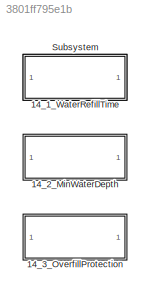
MODEL slx_3801ff795e1b
KIND model
CONFIG AbsTol = auto
CONFIG EnableMultiTasking = off
CONFIG FixedStep = auto
CONFIG MaxStep = auto
CONFIG MinStep = auto
CONFIG RelTol = 1e-3
CONFIG SampleTimeConstraint = Unconstrained
CONFIG SolverName = VariableStepAuto
CONFIG StartTime = 0.0
CONFIG StopTime = 10.0
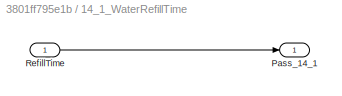
BLOCK [SubSystem] 14_1_WaterRefillTime
BLOCK [Outport] 14_1_WaterRefillTime/Pass_14_1
BLOCK [Inport] 14_1_WaterRefillTime/RefillTime
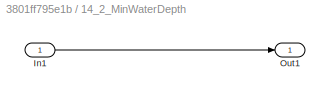
BLOCK [SubSystem] 14_2_MinWaterDepth
BLOCK [Inport] 14_2_MinWaterDepth/In1
BLOCK [Outport] 14_2_MinWaterDepth/Out1
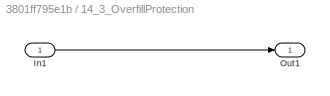
BLOCK [SubSystem] 14_3_OverfillProtection
BLOCK [Inport] 14_3_OverfillProtection/In1
BLOCK [Outport] 14_3_OverfillProtection/Out1
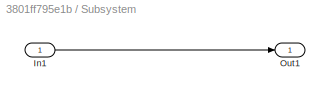
BLOCK [SubSystem] Subsystem
BLOCK [Inport] Subsystem/In1
BLOCK [Outport] Subsystem/Out1
LINE 14_1_WaterRefillTime/RefillTime:1 -> 14_1_WaterRefillTime/Pass_14_1:1
LINE 14_2_MinWaterDepth/In1:1 -> 14_2_MinWaterDepth/Out1:1
LINE 14_3_OverfillProtection/In1:1 -> 14_3_OverfillProtection/Out1:1
LINE Subsystem/In1:1 -> Subsystem/Out1:1
